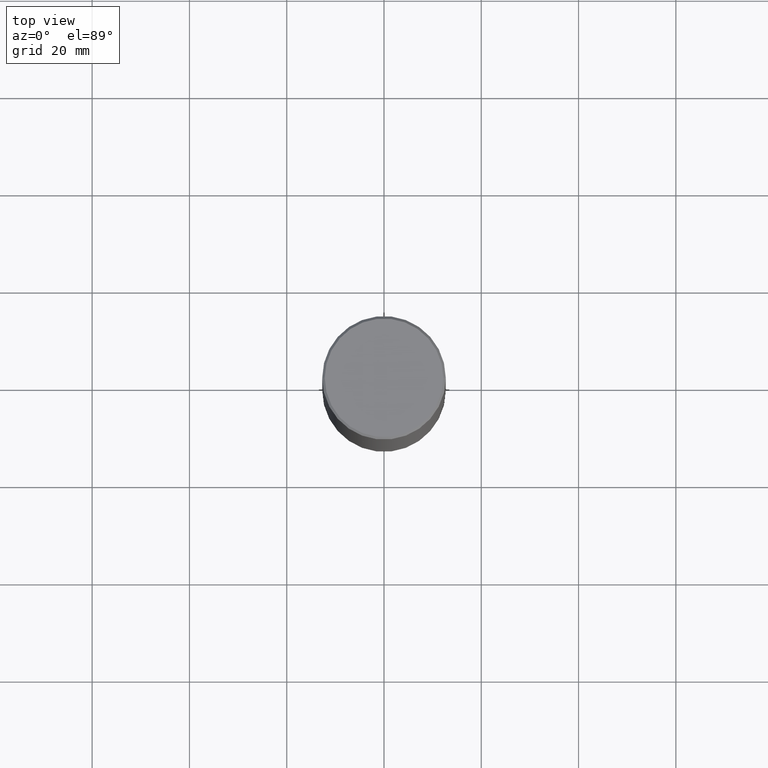
[diagram: clean part render]
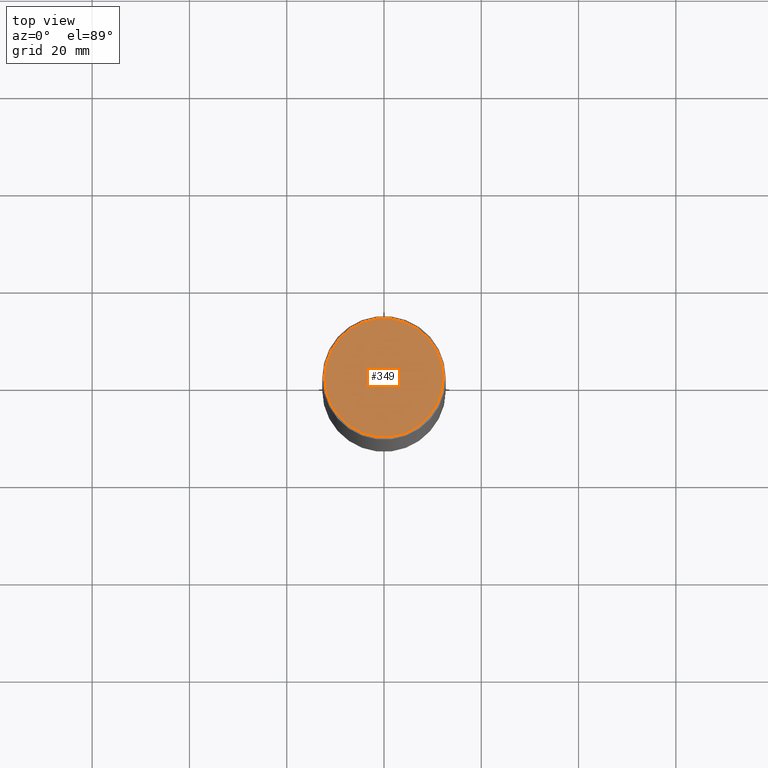
[diagram: same view with one face highlighted and labeled with its STEP entity id]
A machine part, top view. The second image highlights one B-rep face of the part: STEP entity #349.
In plain terms, the highlighted planar face has unit normal (0, -0, -1).
Its self-contained STEP definition (entity closure, byte-faithful):
#28 = CARTESIAN_POINT ( 'NONE',  ( 2.609628535838049452E-45, -3.725857925951117973E-31, -1.067128122525102851E-16 ) ) ;
#36 = DIRECTION ( 'NONE',  ( 2.438088387897960049E-29, -3.491481338843145188E-15, -1.000000000000000000 ) ) ;
#39 = AXIS2_PLACEMENT_3D ( 'NONE', #235, #213, #380 ) ;
#45 = VERTEX_POINT ( 'NONE', #145 ) ;
#67 = CIRCLE ( 'NONE', #295, 0.4800000000000000933 ) ;
#69 = DIRECTION ( 'NONE',  ( -1.000000000000000000, 6.982962677686265922E-15, -4.876176775795935793E-29 ) ) ;
#80 = ORIENTED_EDGE ( 'NONE', *, *, #85, .T. ) ;
#85 = EDGE_CURVE ( 'NONE', #200, #45, #378, .T. ) ;
#101 = PLANE ( 'NONE',  #341 ) ;
#127 = ORIENTED_EDGE ( 'NONE', *, *, #174, .T. ) ;
#136 = FACE_OUTER_BOUND ( 'NONE', #182, .T. ) ;
#145 = CARTESIAN_POINT ( 'NONE',  ( -0.4800000000000000933, 3.386736898677839197E-15, -1.067128122525338523E-16 ) ) ;
#174 = EDGE_CURVE ( 'NONE', #45, #200, #67, .T. ) ;
#182 = EDGE_LOOP ( 'NONE', ( #127, #80 ) ) ;
#200 = VERTEX_POINT ( 'NONE', #410 ) ;
#213 = DIRECTION ( 'NONE',  ( -2.445468806185136597E-29, 3.491481338843145583E-15, 1.000000000000000000 ) ) ;
#215 = DIRECTION ( 'NONE',  ( -2.445468806185136597E-29, 3.491481338843145583E-15, 1.000000000000000000 ) ) ;
#235 = CARTESIAN_POINT ( 'NONE',  ( 2.609628535838049452E-45, -3.725857925951117973E-31, -1.067128122525102851E-16 ) ) ;
#295 = AXIS2_PLACEMENT_3D ( 'NONE', #28, #215, #374 ) ;
#324 = CARTESIAN_POINT ( 'NONE',  ( 3.351822085289408337E-15, 0.4800000000000000933, -1.729267448770965221E-15 ) ) ;
#341 = AXIS2_PLACEMENT_3D ( 'NONE', #324, #36, #69 ) ;
#349 = ADVANCED_FACE ( 'NONE', ( #136 ), #101, .F. ) ;
#374 = DIRECTION ( 'NONE',  ( 1.000000000000000000, -6.982962677686266711E-15, 4.874852205035275907E-29 ) ) ;
#378 = CIRCLE ( 'NONE', #39, 0.4800000000000000933 ) ;
#380 = DIRECTION ( 'NONE',  ( 1.000000000000000000, -6.982962677686266711E-15, 4.874852205035275907E-29 ) ) ;
#410 = CARTESIAN_POINT ( 'NONE',  ( 0.4800000000000000933, -3.396558832296482493E-15, -1.067128122524866809E-16 ) ) ;